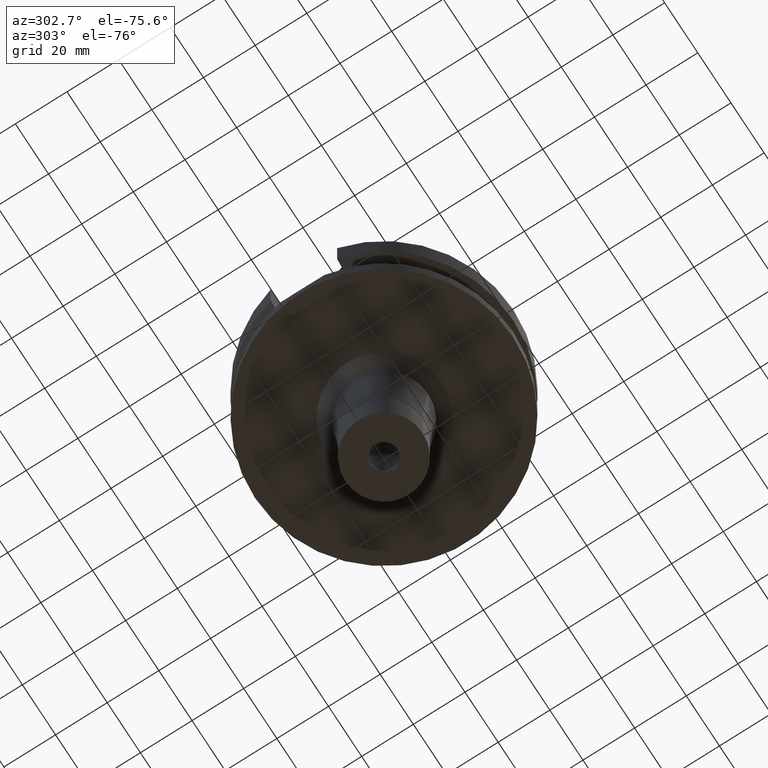
[diagram: clean part render]
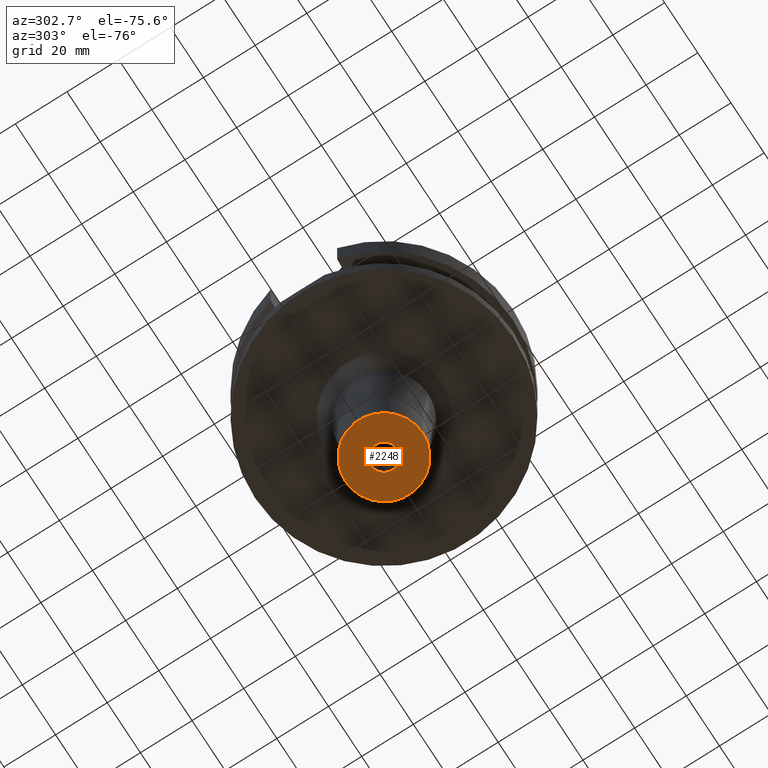
[diagram: same view with one face highlighted and labeled with its STEP entity id]
A machine part, auxiliary view. The second image highlights one B-rep face of the part: STEP entity #2248.
In plain terms, the highlighted planar face has unit normal (0, 0, -1).
Its self-contained STEP definition (entity closure, byte-faithful):
#246 = VERTEX_POINT ( 'NONE', #3183 ) ;
#336 = CIRCLE ( 'NONE', #804, 15.00000000000000000 ) ;
#443 = PLANE ( 'NONE',  #3015 ) ;
#510 = CARTESIAN_POINT ( 'NONE',  ( 0.0000000000000000000, 0.0000000000000000000, -22.00000000000000000 ) ) ;
#583 = CARTESIAN_POINT ( 'NONE',  ( 0.0000000000000000000, 0.0000000000000000000, -22.00000000000000000 ) ) ;
#605 = CIRCLE ( 'NONE', #2667, 5.100000000001000622 ) ;
#711 = EDGE_CURVE ( 'NONE', #3101, #2447, #336, .T. ) ;
#804 = AXIS2_PLACEMENT_3D ( 'NONE', #2591, #901, #2109 ) ;
#833 = CARTESIAN_POINT ( 'NONE',  ( 0.0000000000000000000, 15.00000000000000000, -22.00000000000000000 ) ) ;
#901 = DIRECTION ( 'NONE',  ( 0.0000000000000000000, 0.0000000000000000000, 1.000000000000000000 ) ) ;
#937 = FACE_BOUND ( 'NONE', #2312, .T. ) ;
#962 = DIRECTION ( 'NONE',  ( 0.0000000000000000000, 0.0000000000000000000, -1.000000000000000000 ) ) ;
#990 = DIRECTION ( 'NONE',  ( 0.0000000000000000000, 0.0000000000000000000, -1.000000000000000000 ) ) ;
#1060 = CARTESIAN_POINT ( 'NONE',  ( 0.0000000000000000000, -5.100000000001000622, -22.00000000000000000 ) ) ;
#1430 = CIRCLE ( 'NONE', #2763, 15.00000000000000000 ) ;
#1432 = CARTESIAN_POINT ( 'NONE',  ( 0.0000000000000000000, 0.0000000000000000000, -22.00000000000000000 ) ) ;
#1451 = CARTESIAN_POINT ( 'NONE',  ( 0.0000000000000000000, 0.0000000000000000000, -22.00000000000000000 ) ) ;
#1576 = ORIENTED_EDGE ( 'NONE', *, *, #2664, .F. ) ;
#1840 = VERTEX_POINT ( 'NONE', #1060 ) ;
#2026 = ORIENTED_EDGE ( 'NONE', *, *, #2424, .F. ) ;
#2106 = DIRECTION ( 'NONE',  ( 0.0000000000000000000, -1.000000000000000000, 0.0000000000000000000 ) ) ;
#2109 = DIRECTION ( 'NONE',  ( 0.0000000000000000000, 1.000000000000000000, 0.0000000000000000000 ) ) ;
#2136 = EDGE_LOOP ( 'NONE', ( #2481, #2026 ) ) ;
#2248 = ADVANCED_FACE ( 'NONE', ( #2696, #937 ), #443, .T. ) ;
#2312 = EDGE_LOOP ( 'NONE', ( #2606, #1576 ) ) ;
#2419 = DIRECTION ( 'NONE',  ( 0.0000000000000000000, -1.000000000000000000, 0.0000000000000000000 ) ) ;
#2424 = EDGE_CURVE ( 'NONE', #2447, #3101, #1430, .T. ) ;
#2447 = VERTEX_POINT ( 'NONE', #2574 ) ;
#2481 = ORIENTED_EDGE ( 'NONE', *, *, #711, .F. ) ;
#2485 = DIRECTION ( 'NONE',  ( 0.0000000000000000000, 1.000000000000000000, 0.0000000000000000000 ) ) ;
#2574 = CARTESIAN_POINT ( 'NONE',  ( 0.0000000000000000000, -15.00000000000000000, -22.00000000000000000 ) ) ;
#2591 = CARTESIAN_POINT ( 'NONE',  ( 0.0000000000000000000, 0.0000000000000000000, -22.00000000000000000 ) ) ;
#2606 = ORIENTED_EDGE ( 'NONE', *, *, #3047, .F. ) ;
#2620 = AXIS2_PLACEMENT_3D ( 'NONE', #1451, #3149, #2635 ) ;
#2635 = DIRECTION ( 'NONE',  ( 0.0000000000000000000, -1.000000000000000000, 0.0000000000000000000 ) ) ;
#2664 = EDGE_CURVE ( 'NONE', #1840, #246, #3018, .T. ) ;
#2667 = AXIS2_PLACEMENT_3D ( 'NONE', #510, #990, #2485 ) ;
#2696 = FACE_OUTER_BOUND ( 'NONE', #2136, .T. ) ;
#2763 = AXIS2_PLACEMENT_3D ( 'NONE', #583, #2847, #2106 ) ;
#2847 = DIRECTION ( 'NONE',  ( 0.0000000000000000000, 0.0000000000000000000, 1.000000000000000000 ) ) ;
#3015 = AXIS2_PLACEMENT_3D ( 'NONE', #1432, #962, #2419 ) ;
#3018 = CIRCLE ( 'NONE', #2620, 5.100000000001000622 ) ;
#3047 = EDGE_CURVE ( 'NONE', #246, #1840, #605, .T. ) ;
#3101 = VERTEX_POINT ( 'NONE', #833 ) ;
#3149 = DIRECTION ( 'NONE',  ( 0.0000000000000000000, 0.0000000000000000000, -1.000000000000000000 ) ) ;
#3183 = CARTESIAN_POINT ( 'NONE',  ( 0.0000000000000000000, 5.100000000001000622, -22.00000000000000000 ) ) ;